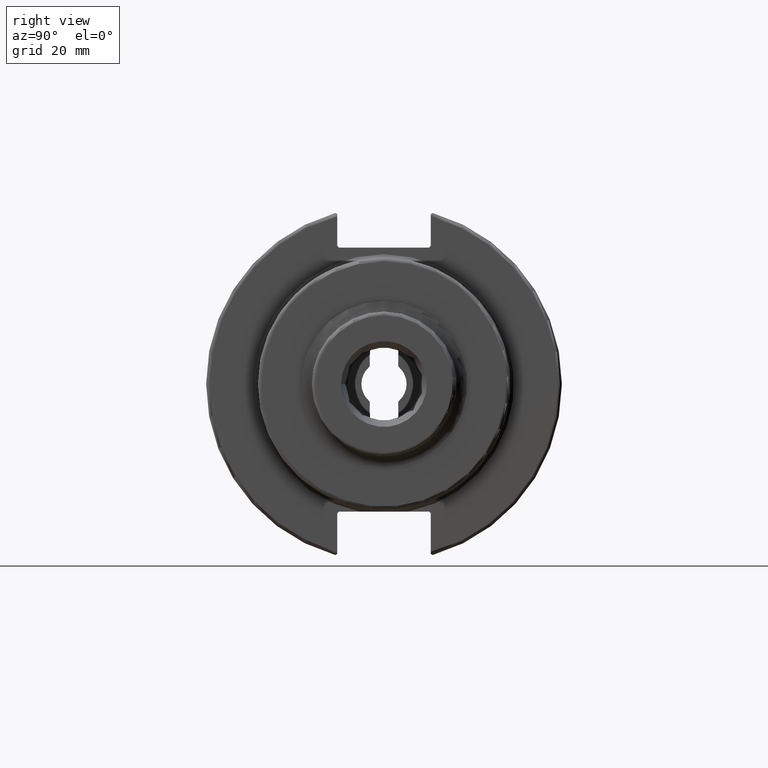
[diagram: clean part render]
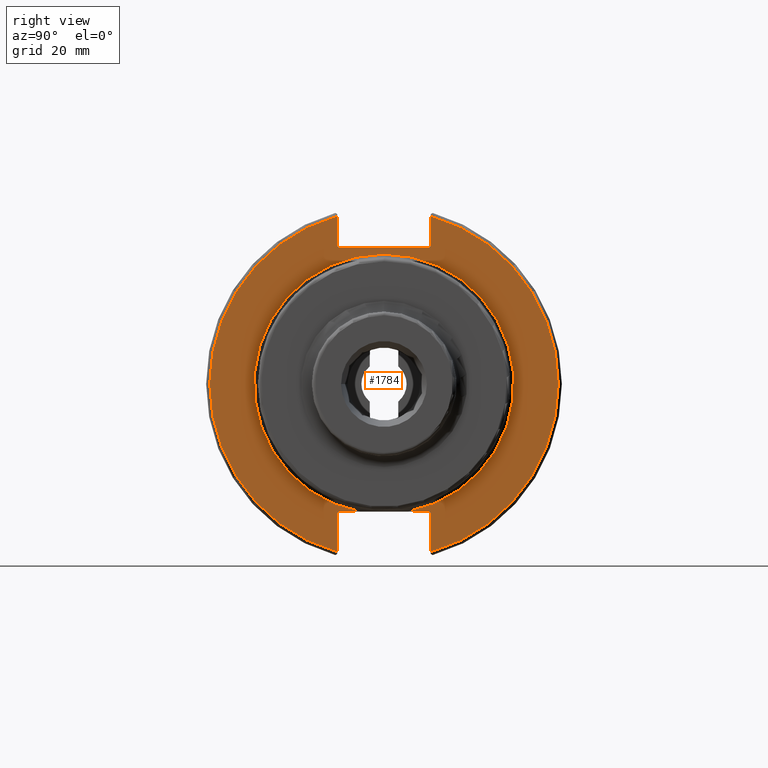
[diagram: same view with one face highlighted and labeled with its STEP entity id]
A machine part, right view. The second image highlights one B-rep face of the part: STEP entity #1784.
In plain terms, the highlighted planar face has unit normal (1, 0, 0).
Its self-contained STEP definition (entity closure, byte-faithful):
#96=CIRCLE('',#1913,35.925);
#107=CIRCLE('',#1933,48.2125);
#108=CIRCLE('',#1934,48.2125);
#177=PLANE('',#1932);
#256=FACE_OUTER_BOUND('',#364,.T.);
#364=EDGE_LOOP('',(#1454,#1455,#1456,#1457,#1458,#1459,#1460,#1461,#1462,
#1463,#1464,#1465,#1466,#1467));
#533=LINE('',#3490,#658);
#534=LINE('',#3492,#659);
#535=LINE('',#3494,#660);
#536=LINE('',#3498,#661);
#537=LINE('',#3500,#662);
#538=LINE('',#3502,#663);
#539=LINE('',#3504,#664);
#540=LINE('',#3506,#665);
#541=LINE('',#3510,#666);
#542=LINE('',#3512,#667);
#543=LINE('',#3513,#668);
#658=VECTOR('',#2232,10.);
#659=VECTOR('',#2233,10.);
#660=VECTOR('',#2234,10.);
#661=VECTOR('',#2237,10.);
#662=VECTOR('',#2238,10.);
#663=VECTOR('',#2239,10.);
#664=VECTOR('',#2240,10.);
#665=VECTOR('',#2241,10.);
#666=VECTOR('',#2244,10.);
#667=VECTOR('',#2245,10.);
#668=VECTOR('',#2246,10.);
#808=VERTEX_POINT('',#3446);
#809=VERTEX_POINT('',#3453);
#816=VERTEX_POINT('',#3489);
#817=VERTEX_POINT('',#3491);
#818=VERTEX_POINT('',#3493);
#819=VERTEX_POINT('',#3495);
#820=VERTEX_POINT('',#3497);
#821=VERTEX_POINT('',#3499);
#822=VERTEX_POINT('',#3501);
#823=VERTEX_POINT('',#3503);
#824=VERTEX_POINT('',#3505);
#825=VERTEX_POINT('',#3507);
#826=VERTEX_POINT('',#3509);
#827=VERTEX_POINT('',#3511);
#1029=EDGE_CURVE('',#808,#809,#96,.T.);
#1044=EDGE_CURVE('',#808,#816,#533,.T.);
#1045=EDGE_CURVE('',#817,#816,#534,.T.);
#1046=EDGE_CURVE('',#817,#818,#535,.T.);
#1047=EDGE_CURVE('',#819,#818,#107,.T.);
#1048=EDGE_CURVE('',#819,#820,#536,.T.);
#1049=EDGE_CURVE('',#821,#820,#537,.T.);
#1050=EDGE_CURVE('',#821,#822,#538,.T.);
#1051=EDGE_CURVE('',#823,#822,#539,.T.);
#1052=EDGE_CURVE('',#823,#824,#540,.T.);
#1053=EDGE_CURVE('',#825,#824,#108,.T.);
#1054=EDGE_CURVE('',#825,#826,#541,.T.);
#1055=EDGE_CURVE('',#827,#826,#542,.T.);
#1056=EDGE_CURVE('',#827,#809,#543,.T.);
#1454=ORIENTED_EDGE('',*,*,#1029,.F.);
#1455=ORIENTED_EDGE('',*,*,#1044,.T.);
#1456=ORIENTED_EDGE('',*,*,#1045,.F.);
#1457=ORIENTED_EDGE('',*,*,#1046,.T.);
#1458=ORIENTED_EDGE('',*,*,#1047,.F.);
#1459=ORIENTED_EDGE('',*,*,#1048,.T.);
#1460=ORIENTED_EDGE('',*,*,#1049,.F.);
#1461=ORIENTED_EDGE('',*,*,#1050,.T.);
#1462=ORIENTED_EDGE('',*,*,#1051,.F.);
#1463=ORIENTED_EDGE('',*,*,#1052,.T.);
#1464=ORIENTED_EDGE('',*,*,#1053,.F.);
#1465=ORIENTED_EDGE('',*,*,#1054,.T.);
#1466=ORIENTED_EDGE('',*,*,#1055,.F.);
#1467=ORIENTED_EDGE('',*,*,#1056,.T.);
#1784=ADVANCED_FACE('',(#256),#177,.T.);
#1913=AXIS2_PLACEMENT_3D('',#3454,#2189,#2190);
#1932=AXIS2_PLACEMENT_3D('',#3488,#2230,#2231);
#1933=AXIS2_PLACEMENT_3D('',#3496,#2235,#2236);
#1934=AXIS2_PLACEMENT_3D('',#3508,#2242,#2243);
#2189=DIRECTION('center_axis',(1.,0.,0.));
#2190=DIRECTION('ref_axis',(0.,-1.,-1.22464679914735E-16));
#2230=DIRECTION('center_axis',(1.,0.,0.));
#2231=DIRECTION('ref_axis',(0.,0.,-1.));
#2232=DIRECTION('',(0.,1.,0.));
#2233=DIRECTION('',(0.,-0.707106781186549,0.707106781186546));
#2234=DIRECTION('',(0.,0.,-1.));
#2235=DIRECTION('center_axis',(-1.,0.,0.));
#2236=DIRECTION('ref_axis',(0.,1.,-6.12323399573677E-17));
#2237=DIRECTION('',(0.,0.,-1.));
#2238=DIRECTION('',(0.,0.707106781186549,0.707106781186546));
#2239=DIRECTION('',(0.,-1.,0.));
#2240=DIRECTION('',(0.,0.707106781186549,-0.707106781186546));
#2241=DIRECTION('',(0.,0.,1.));
#2242=DIRECTION('center_axis',(-1.,0.,0.));
#2243=DIRECTION('ref_axis',(0.,-1.,1.60812264967664E-16));
#2244=DIRECTION('',(0.,0.,1.));
#2245=DIRECTION('',(0.,-0.707106781186549,-0.707106781186546));
#2246=DIRECTION('',(0.,1.,0.));
#3446=CARTESIAN_POINT('',(19.05,6.64017989214148,-35.306));
#3453=CARTESIAN_POINT('',(19.05,-6.64017989214148,-35.306));
#3454=CARTESIAN_POINT('Origin',(19.05,0.,0.));
#3488=CARTESIAN_POINT('Origin',(19.05,0.,0.));
#3489=CARTESIAN_POINT('',(19.05,12.45,-35.306));
#3490=CARTESIAN_POINT('',(19.05,-3.33066907387547E-15,-35.306));
#3491=CARTESIAN_POINT('',(19.05,12.95,-35.806));
#3492=CARTESIAN_POINT('',(19.05,0.635999999999982,-23.492));
#3493=CARTESIAN_POINT('',(19.05,12.95,-46.4407434937254));
#3494=CARTESIAN_POINT('',(19.05,12.95,-17.653));
#3495=CARTESIAN_POINT('',(19.05,12.95,46.4407434937254));
#3496=CARTESIAN_POINT('Origin',(19.05,0.,0.));
#3497=CARTESIAN_POINT('',(19.05,12.95,38.219));
#3498=CARTESIAN_POINT('',(19.05,12.95,18.8595));
#3499=CARTESIAN_POINT('',(19.05,12.45,37.719));
#3500=CARTESIAN_POINT('',(19.05,0.0327499999999836,25.30175));
#3501=CARTESIAN_POINT('',(19.05,-12.45,37.719));
#3502=CARTESIAN_POINT('',(19.05,0.,37.719));
#3503=CARTESIAN_POINT('',(19.05,-12.95,38.219));
#3504=CARTESIAN_POINT('',(19.05,-0.0327499999999817,25.30175));
#3505=CARTESIAN_POINT('',(19.05,-12.95,46.4407434937254));
#3506=CARTESIAN_POINT('',(19.05,-12.95,18.8595));
#3507=CARTESIAN_POINT('',(19.05,-12.95,-46.4407434937254));
#3508=CARTESIAN_POINT('Origin',(19.05,0.,0.));
#3509=CARTESIAN_POINT('',(19.05,-12.95,-35.806));
#3510=CARTESIAN_POINT('',(19.05,-12.95,-17.653));
#3511=CARTESIAN_POINT('',(19.05,-12.45,-35.306));
#3512=CARTESIAN_POINT('',(19.05,-0.635999999999989,-23.492));
#3513=CARTESIAN_POINT('',(19.05,-3.33066907387547E-15,-35.306));